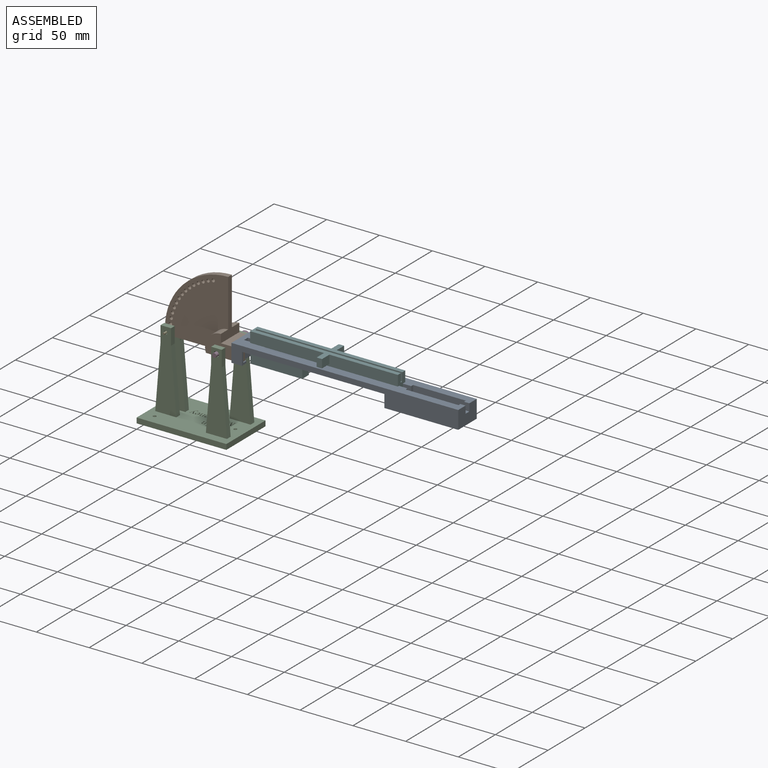
[diagram: assembled view]
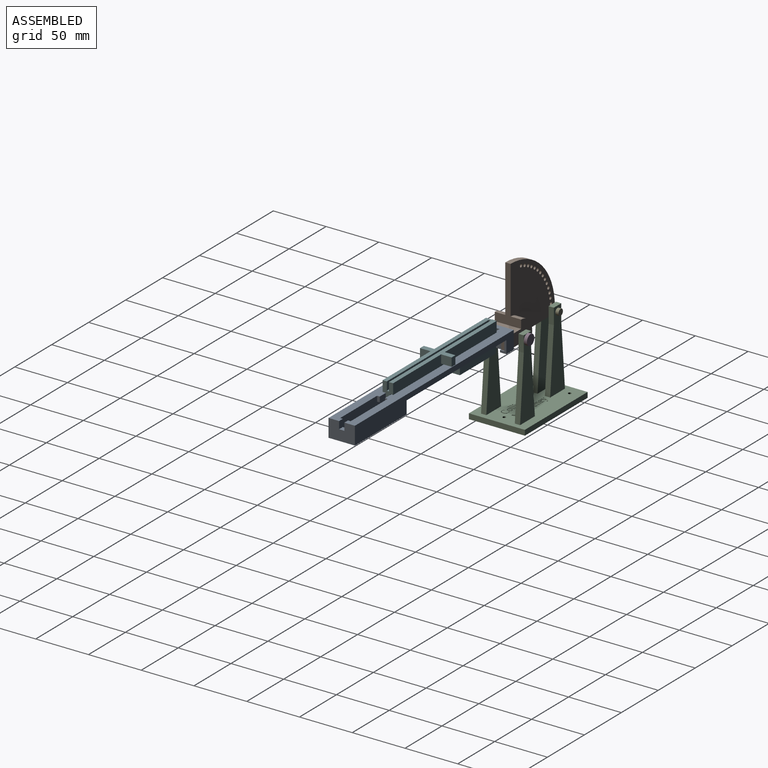
[diagram: assembled view, second angle]
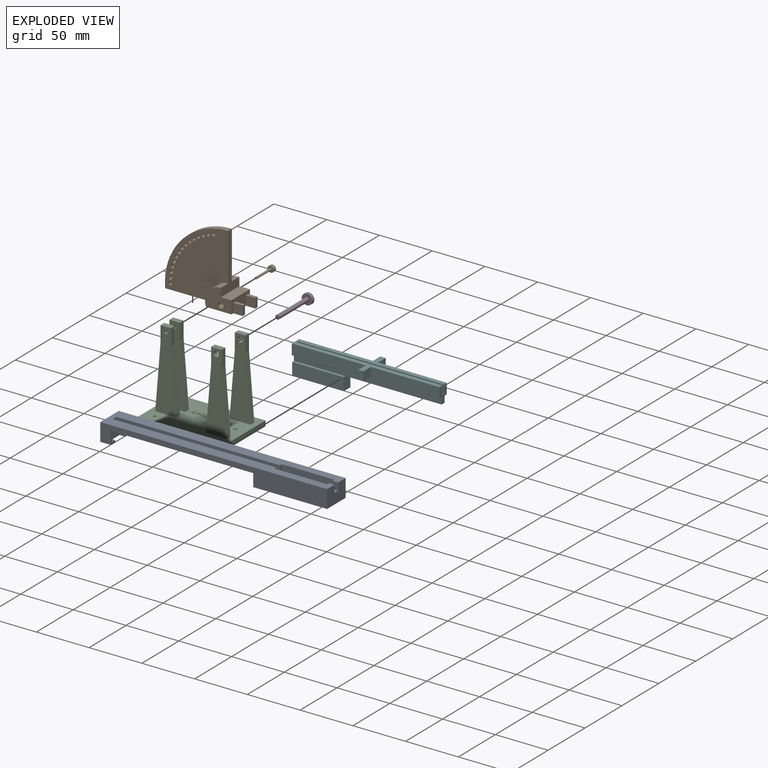
[diagram: exploded view]
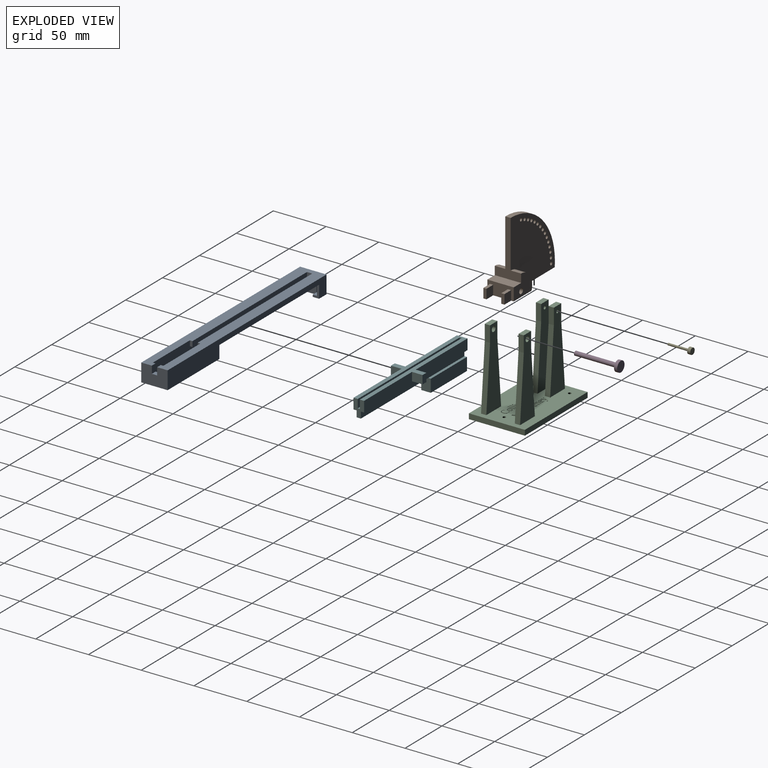
[diagram: exploded view, second angle]
ASSEMBLY  parts=6 mates=7
PART A: 34 faces, bbox 215x25x17 mm
  f0: plane 210x10mm, normal (0,0,1), area 1610mm2, adj f1,f2,f5,f6,f7,f13,f16,f17
  f1: plane 25x17mm, normal (-1,0,0), area 345mm2, adj f0,f4,f12,f13,f18,f21,f22,f23
  f2: plane 12x6mm, normal (1,0,0), area 32mm2, adj f0,f13,f19,f21,f26,f27
  f3: plane 12x6mm, normal (1,0,0), area 32mm2, adj f4,f12,f20,f21,f23,f24
  f4: plane 210x10mm, normal (0,0,1), area 1610mm2, adj f1,f3,f7,f8,f9,f10,f12,f16
  f5: plane 5x2.5mm, normal (1,0,0), area 12.5mm2, adj f0,f6,f17,f18
  f6: plane 155x5mm, normal (0,1,0), area 775mm2, adj f0,f5,f7,f18
  f7: plane 17x13mm, normal (1,0,0), area 181mm2, adj f0,f4,f6,f8,f18,f19,f20,f21
  f8: plane 155x5mm, normal (0,-1,0), area 775mm2, adj f4,f7,f9,f18
  f9: plane 5x2.5mm, normal (1,0,0), area 12.5mm2, adj f4,f8,f10,f18
  f10: plane 50x5mm, normal (0,-1,0), area 250mm2, adj f4,f9,f16,f18
  f11: plane 7x5mm, normal (0,-1,0), area 35mm2, adj f14,f16,f18,f33
  f12: plane 215x17mm, normal (0,1,0), area 2035mm2, adj f1,f3,f4,f14,f18,f21,f28,f32
  f13: plane 215x17mm, normal (0,-1,0), area 2035mm2, adj f0,f1,f2,f14,f18,f21,f31,f32
  f14: plane 25x17mm, normal (1,0,0), area 390mm2, adj f11,f12,f13,f15,f18,f32,f33
  f15: plane 7x5mm, normal (0,1,0), area 35mm2, adj f14,f16,f18,f33
  f16: plane 17x15mm, normal (-1,0,0), area 195mm2, adj f0,f4,f10,f11,f15,f17,f18,f29
  f17: plane 50x5mm, normal (0,1,0), area 250mm2, adj f0,f5,f16,f18
  f18: plane 215x25mm, normal (0,0,-1), area 4075mm2, adj f1,f5,f6,f7,f8,f9,f10,f11
  f19: plane 5x2mm, normal (0,1,0), area 10mm2, adj f2,f7,f21,f26
  f20: plane 5x2mm, normal (0,-1,0), area 10mm2, adj f3,f7,f21,f23
  f21: plane 25x10mm, normal (0,0,1), area 185mm2, adj f1,f2,f3,f7,f12,f13,f19,f20
  f22: plane 10x5mm, normal (0,1,0), area 50mm2, adj f1,f4,f7,f23
  f23: plane 10x4mm, normal (0,0,-1), area 40mm2, adj f1,f3,f20,f22,f24
  f24: plane 10x10mm, normal (0,-1,0), area 100mm2, adj f1,f3,f4,f23
  f25: plane 10x5mm, normal (0,-1,0), area 50mm2, adj f0,f1,f7,f26
  f26: plane 10x4mm, normal (0,0,-1), area 40mm2, adj f1,f2,f19,f25,f27
  f27: plane 10x10mm, normal (0,1,0), area 100mm2, adj f0,f1,f2,f26
  f28: plane 12x5mm, normal (-1,0,0), area 60mm2, adj f4,f12,f29,f32
  f29: plane 65x12mm, normal (0,-1,0), area 780mm2, adj f4,f16,f28,f32
  f30: plane 65x12mm, normal (0,1,0), area 780mm2, adj f0,f16,f31,f32
  f31: plane 12x5mm, normal (-1,0,0), area 60mm2, adj f0,f13,f30,f32
  f32: plane 70x25mm, normal (0,0,1), area 775mm2, adj f12,f13,f14,f16,f28,f29,f30,f31
  f33: plane 5x5mm, normal (0,0,-1), area 25mm2, adj f11,f14,f15,f16
PART B: 35 faces, bbox 79x25x65 mm
  f0: plane 25x12mm, normal (-1,0,0), area 246mm2, adj f18,f19,f20,f22,f27,f28,f29,f31
  f1: plane 53x25mm, normal (-1,0,0), area 425mm2, adj f17,f18,f19,f22,f23,f24,f25,f26
  f2: cylinder r=1.5mm len=5mm, axis (0,1,0), area 47.1mm2, adj f24,f26
  f3: cylinder r=1.5mm len=5mm, axis (0,1,0), area 47.1mm2, adj f24,f26
  f4: cylinder r=1.5mm len=5mm, axis (0,1,0), area 47.1mm2, adj f24,f26
  f5: cylinder r=1.5mm len=5mm, axis (0,1,0), area 47.1mm2, adj f24,f26
  f6: cylinder r=1.5mm len=5mm, axis (0,1,0), area 47.1mm2, adj f24,f26
  f7: cylinder r=1.5mm len=5mm, axis (0,1,0), area 47.1mm2, adj f24,f26
  f8: cylinder r=1.5mm len=5mm, axis (0,1,0), area 47.1mm2, adj f24,f26
  f9: cylinder r=1.5mm len=5mm, axis (0,1,0), area 47.1mm2, adj f24,f26
  f10: cylinder r=1.5mm len=5mm, axis (0,1,0), area 47.1mm2, adj f24,f26
  f11: cylinder r=1.5mm len=5mm, axis (0,1,0), area 47.1mm2, adj f24,f26
  f12: cylinder r=1.5mm len=5mm, axis (0,1,0), area 47.1mm2, adj f24,f26
  f13: cylinder r=1.5mm len=5mm, axis (0,1,0), area 47.1mm2, adj f24,f26
  f14: cylinder r=1.5mm len=5mm, axis (0,1,0), area 47.1mm2, adj f24,f26
  f15: cylinder r=1.5mm len=5mm, axis (0,1,0), area 47.1mm2, adj f24,f26
  f16: cylinder r=1.5mm len=5mm, axis (0,1,0), area 47.1mm2, adj f24,f26
  f17: cylinder r=60mm len=65mm, axis (0,1,0), area 496.3mm2, adj f1,f20,f24,f26
  f18: plane 25x20mm, normal (0,-1,0), area 350.7mm2, adj f0,f1,f19,f20,f21,f23
  f19: plane 25x10mm, normal (0,0,1), area 250mm2, adj f0,f1,f18,f22
  f20: plane 78.79x25mm, normal (0,0,-1), area 885.8mm2, adj f0,f17,f18,f22,f23,f24,f25,f26
  f21: cylinder r=2.5mm len=25mm, axis (0,1,0), area 392.7mm2, adj f18,f22
  f22: plane 25x20mm, normal (0,1,0), area 350.7mm2, adj f0,f1,f19,f20,f21,f25
  f23: cylinder r=15mm len=20mm, axis (0,-1,0), area 286.6mm2, adj f1,f18,f20,f24
  f24: plane 65x60mm, normal (0,-1,0), area 2770.8mm2, adj f1,f2,f3,f4,f5,f6,f7,f8
  f25: cylinder r=15mm len=20mm, axis (0,1,0), area 286.6mm2, adj f1,f20,f22,f26
  f26: plane 65x60mm, normal (0,1,0), area 2770.8mm2, adj f1,f2,f3,f4,f5,f6,f7,f8
  f27: plane 9x3mm, normal (0,0,1), area 27mm2, adj f0,f28,f29,f30
  f28: plane 9x9mm, normal (0,1,0), area 81mm2, adj f0,f20,f27,f30
  f29: plane 9x9mm, normal (0,-1,0), area 81mm2, adj f0,f20,f27,f30
  f30: plane 9x3mm, normal (-1,0,0), area 27mm2, adj f20,f27,f28,f29
  f31: plane 9x9mm, normal (0,-1,0), area 81mm2, adj f0,f20,f32,f34
  f32: plane 9x3mm, normal (0,0,1), area 27mm2, adj f0,f31,f33,f34
  f33: plane 9x9mm, normal (0,1,0), area 81mm2, adj f0,f20,f32,f34
  f34: plane 9x3mm, normal (-1,0,0), area 27mm2, adj f20,f31,f32,f33
PART C: 324 faces, bbox 85x53x80 mm
  f0: plane 85x53mm, normal (0,0,1), area 3956.6mm2, adj f5,f6,f7,f8,f10,f11,f13,f15
  f1: plane 15x5mm, normal (-1,0,0), area 75mm2, adj f10,f11,f12,f37
  f2: plane 15x5mm, normal (1,0,0), area 75mm2, adj f10,f11,f12,f36
  f3: plane 15x5mm, normal (-1,0,0), area 75mm2, adj f18,f19,f20,f35
  f4: plane 15x5mm, normal (1,0,0), area 75mm2, adj f18,f19,f20,f34
  f5: plane 85x5mm, normal (0,-1,0), area 425mm2, adj f0,f6,f8,f9
  f6: plane 53x5mm, normal (1,0,0), area 265mm2, adj f0,f5,f7,f9
  f7: plane 85x5mm, normal (0,1,0), area 425mm2, adj f0,f6,f8,f9
  f8: plane 53x5mm, normal (-1,0,0), area 265mm2, adj f0,f5,f7,f9
  f9: plane 85x53mm, normal (0,0,-1), area 4483.8mm2, adj f5,f6,f7,f8,f38,f39,f40
  f10: plane 75x20mm, normal (0,1,0), area 1030.4mm2, adj f0,f1,f2,f12,f29,f36,f37
  f11: plane 75x20mm, normal (0,-1,0), area 1030.4mm2, adj f0,f1,f2,f12,f29,f36,f37
  f12: plane 10x5mm, normal (0,0,1), area 50mm2, adj f1,f2,f10,f11
  f13: plane 75x20mm, normal (0,1,0), area 1030.4mm2, adj f0,f14,f16,f17,f28,f30,f31
  f14: plane 15x5mm, normal (-1,0,0), area 75mm2, adj f13,f15,f17,f30
  f15: plane 75x20mm, normal (0,-1,0), area 1030.4mm2, adj f0,f14,f16,f17,f28,f30,f31
  f16: plane 15x5mm, normal (1,0,0), area 75mm2, adj f13,f15,f17,f31
  f17: plane 10x5mm, normal (0,0,1), area 50mm2, adj f13,f14,f15,f16
  f18: plane 75x20mm, normal (0,1,0), area 1042.9mm2, adj f0,f3,f4,f20,f27,f34,f35
  f19: plane 75x20mm, normal (0,-1,0), area 1042.9mm2, adj f0,f3,f4,f20,f27,f34,f35
  f20: plane 10x5mm, normal (0,0,1), area 50mm2, adj f3,f4,f18,f19
  f21: plane 75x20mm, normal (0,1,0), area 1042.9mm2, adj f0,f22,f24,f25,f26,f32,f33
  f22: plane 15x5mm, normal (-1,0,0), area 75mm2, adj f21,f23,f25,f32
  f23: plane 75x20mm, normal (0,-1,0), area 1042.9mm2, adj f0,f22,f24,f25,f26,f32,f33
  f24: plane 15x5mm, normal (1,0,0), area 75mm2, adj f21,f23,f25,f33
  f25: plane 10x5mm, normal (0,0,1), area 50mm2, adj f21,f22,f23,f24
  f26: cylinder r=1.5mm len=5mm, axis (0,-1,0), area 47.1mm2, adj f21,f23
  f27: cylinder r=1.5mm len=5mm, axis (0,-1,0), area 47.1mm2, adj f18,f19
  f28: cylinder r=2.5mm len=5mm, axis (0,-1,0), area 78.5mm2, adj f13,f15
  f29: cylinder r=2.5mm len=5mm, axis (0,-1,0), area 78.5mm2, adj f10,f11
  f30: plane 60x5mm, normal (-1,0,0.08), area 301mm2, adj f0,f13,f14,f15
  f31: plane 60x5mm, normal (1,0,0.08), area 301mm2, adj f0,f13,f15,f16
  f32: plane 60x5mm, normal (-1,0,0.08), area 301mm2, adj f0,f21,f22,f23
  f33: plane 60x5mm, normal (1,0,0.08), area 301mm2, adj f0,f21,f23,f24
  f34: plane 60x5mm, normal (1,0,0.08), area 301mm2, adj f0,f4,f18,f19
  f35: plane 60x5mm, normal (-1,0,0.08), area 301mm2, adj f0,f3,f18,f19
  f36: plane 60x5mm, normal (1,0,0.08), area 301mm2, adj f0,f2,f10,f11
  f37: plane 60x5mm, normal (-1,0,0.08), area 301mm2, adj f0,f1,f10,f11
  f38: cylinder r=1.5mm len=5mm, axis (0,0,1), area 47.1mm2, adj f0,f9
  f39: cylinder r=1.5mm len=5mm, axis (0,0,1), area 47.1mm2, adj f0,f9
  f40: cylinder r=1.5mm len=5mm, axis (0,0,1), area 47.1mm2, adj f0,f9
  f41: extruded ~2.36x2mm, area 5.1mm2, adj f0,f42,f60,f61
  f42: extruded ~2.2x2mm, area 4.5mm2, adj f0,f41,f43,f61
  f43: plane 2x1.47mm, normal (-1,0.02,0), area 2.9mm2, adj f0,f42,f44,f61
  f44: plane 2x0.3mm, normal (0,-1,0), area 0.6mm2, adj f0,f43,f45,f61
  f45: plane 2x0.93mm, normal (0.98,-0.18,0), area 1.9mm2, adj f0,f44,f46,f61
  f46: extruded ~2x0.74mm, area 1.6mm2, adj f0,f45,f47,f61
  f47: extruded ~2x1mm, area 2mm2, adj f0,f46,f48,f61
  f48: extruded ~2x1.67mm, area 3.8mm2, adj f0,f47,f49,f61
  f49: extruded ~2.07x2mm, area 4.4mm2, adj f0,f48,f50,f61
  f50: extruded ~2.18x2mm, area 4.6mm2, adj f0,f49,f51,f61
  f51: extruded ~2x1.74mm, area 3.9mm2, adj f0,f50,f52,f61
  f52: extruded ~2x0.88mm, area 1.8mm2, adj f0,f51,f53,f61
  f53: extruded ~2x0.76mm, area 1.6mm2, adj f0,f52,f54,f61
  f54: plane 2x0.81mm, normal (0.99,0.17,0), area 1.6mm2, adj f0,f53,f55,f61
  f55: plane 2x0.31mm, normal (0,1,0), area 0.6mm2, adj f0,f54,f56,f61
  f56: plane 2x1.36mm, normal (-1,-0.02,0), area 2.7mm2, adj f0,f55,f57,f61
  f57: extruded ~2.09x2mm, area 4.2mm2, adj f0,f56,f58,f61
  f58: extruded ~2.41x2mm, area 5.2mm2, adj f0,f57,f59,f61
  f59: extruded ~2.43x2mm, area 5.3mm2, adj f0,f58,f60,f61
  f60: extruded ~2.31x2mm, area 5.1mm2, adj f0,f41,f59,f61
  f61: plane 6.4x5.44mm, normal (0,0,1), area 9.1mm2, adj f41,f42,f43,f44,f45,f46,f47,f48
  f62: extruded ~2x0.76mm, area 1.7mm2, adj f0,f63,f86,f87
  f63: plane 2x0.35mm, normal (-0.99,-0.12,0), area 0.7mm2, adj f0,f62,f64,f87
  f64: plane 2x1.25mm, normal (0,-1,0), area 2.5mm2, adj f0,f63,f65,f87
  f65: plane 2x0.21mm, normal (1,0,0), area 0.4mm2, adj f0,f64,f66,f87
  f66: plane 2x0.53mm, normal (0.22,0.98,0), area 1.1mm2, adj f0,f65,f67,f87
  f67: plane 3.72x2mm, normal (1,0,0), area 7.4mm2, adj f0,f66,f68,f87
  f68: plane 2x0.53mm, normal (0.22,-0.98,0), area 1.1mm2, adj f0,f67,f69,f87
  f69: plane 2x0.21mm, normal (1,0,0), area 0.4mm2, adj f0,f68,f70,f87
  f70: plane 2x1.89mm, normal (0,1,0), area 3.8mm2, adj f0,f69,f71,f87
  f71: plane 2x0.21mm, normal (-1,0,0), area 0.4mm2, adj f0,f70,f72,f87
  f72: plane 2x0.59mm, normal (-0.19,-0.98,0), area 1.2mm2, adj f0,f71,f73,f87
  f73: plane 3.48x2mm, normal (-1,0,0), area 7mm2, adj f0,f72,f74,f87
  f74: extruded ~2x1.03mm, area 2.1mm2, adj f0,f73,f75,f87
  f75: extruded ~2x0.58mm, area 1.3mm2, adj f0,f74,f76,f87
  f76: extruded ~2x0.61mm, area 1.3mm2, adj f0,f75,f77,f87
  f77: plane 2.79x2mm, normal (1,0,0), area 5.6mm2, adj f0,f76,f78,f87
  f78: plane 2x0.58mm, normal (0.2,-0.98,0), area 1.2mm2, adj f0,f77,f79,f87
  f79: plane 2x0.21mm, normal (1,0,0), area 0.4mm2, adj f0,f78,f80,f87
  f80: plane 2x1.88mm, normal (0,1,0), area 3.8mm2, adj f0,f79,f81,f87
  f81: plane 2x0.21mm, normal (-1,0,0), area 0.4mm2, adj f0,f80,f82,f87
  f82: plane 2x0.53mm, normal (-0.21,-0.98,0), area 1.1mm2, adj f0,f81,f83,f87
  f83: plane 2.87x2mm, normal (-1,0,0), area 5.7mm2, adj f0,f82,f84,f87
  f84: extruded ~2x0.96mm, area 2mm2, adj f0,f83,f85,f87
  f85: extruded ~2x0.86mm, area 1.9mm2, adj f0,f84,f86,f87
  f86: extruded ~2x0.67mm, area 1.4mm2, adj f0,f62,f85,f87
  f87: plane 4.49x4.4mm, normal (0,0,1), area 8.2mm2, adj f62,f63,f64,f65,f66,f67,f68,f69
  f88: extruded ~2x0.72mm, area 1.4mm2, adj f0,f89,f112,f113
  f89: extruded ~2x0.62mm, area 1.3mm2, adj f0,f88,f90,f113
  f90: extruded ~2x0.51mm, area 1.4mm2, adj f0,f89,f91,f113
  f91: extruded ~2x1.1mm, area 2.4mm2, adj f0,f90,f92,f113
  f92: plane 4.34x2mm, normal (-0.93,0.37,0), area 9.3mm2, adj f0,f91,f93,f113
  f93: plane 2x0.46mm, normal (-0.21,0.98,0), area 0.9mm2, adj f0,f92,f94,f113
  f94: plane 2x0.21mm, normal (-1,0,0), area 0.4mm2, adj f0,f93,f95,f113
  f95: plane 2x1.63mm, normal (0,-1,0), area 3.3mm2, adj f0,f94,f96,f113
  f96: plane 2x0.21mm, normal (1,0,0), area 0.4mm2, adj f0,f95,f97,f113
  f97: plane 2x0.68mm, normal (0.17,0.99,0), area 1.4mm2, adj f0,f96,f98,f113
  f98: plane 3.07x2mm, normal (0.94,-0.35,0), area 6.5mm2, adj f0,f97,f99,f113
  f99: plane 3.06x2mm, normal (-0.93,-0.36,0), area 6.6mm2, adj f0,f98,f100,f113
  f100: plane 2x0.69mm, normal (-0.18,0.98,0), area 1.4mm2, adj f0,f99,f101,f113
  f101: plane 2x0.21mm, normal (-1,0,0), area 0.4mm2, adj f0,f100,f102,f113
  f102: plane 2.03x2mm, normal (0,-1,0), area 4.1mm2, adj f0,f101,f103,f113
  f103: plane 2x0.21mm, normal (1,0,0), area 0.4mm2, adj f0,f102,f104,f113
  f104: plane 2x0.45mm, normal (0.25,0.97,0), area 0.9mm2, adj f0,f103,f105,f113
  f105: plane 4.09x2mm, normal (0.93,0.38,0), area 8.8mm2, adj f0,f104,f106,f113
  f106: extruded ~2x0.98mm, area 2.1mm2, adj f0,f105,f107,f113
  f107: extruded ~2x0.41mm, area 1.1mm2, adj f0,f106,f108,f113
  f108: extruded ~2x0.45mm, area 1mm2, adj f0,f107,f109,f113
  f109: extruded ~2x0.4mm, area 0.8mm2, adj f0,f108,f110,f113
  f110: plane 2x0.45mm, normal (-0.95,-0.32,0), area 0.9mm2, adj f0,f109,f111,f113
  f111: plane 2x0.22mm, normal (0,-1,0), area 0.4mm2, adj f0,f110,f112,f113
  f112: plane 2x0.94mm, normal (1,0,0), area 1.9mm2, adj f0,f88,f111,f113
  f113: plane 6.43x4.61mm, normal (0,0,1), area 7.4mm2, adj f88,f89,f90,f91,f92,f93,f94,f95
  f114: extruded ~2x1.46mm, area 3mm2, adj f115,f128,f129,f320
  f115: extruded ~2x1.48mm, area 3.1mm2, adj f114,f116,f129,f320
  f116: extruded ~2x0.91mm, area 2.1mm2, adj f115,f117,f129,f320
  f117: extruded ~2x0.88mm, area 2.1mm2, adj f116,f118,f129,f320
  f118: extruded ~2x1.49mm, area 3.1mm2, adj f117,f119,f129,f320
  f119: extruded ~2x1.47mm, area 3mm2, adj f118,f120,f129,f320
  f120: extruded ~2x0.88mm, area 2.1mm2, adj f119,f128,f129,f320
  f121: extruded ~2.3x2.05mm, area 7.1mm2, adj f0,f122,f127,f129
  f122: extruded ~2x1.71mm, area 3.6mm2, adj f0,f121,f123,f129
  f123: extruded ~2x1.5mm, area 3.3mm2, adj f0,f122,f124,f129
  f124: extruded ~2x1.52mm, area 3.4mm2, adj f0,f123,f125,f129
  f125: extruded ~2x1.69mm, area 3.6mm2, adj f0,f124,f126,f129
  f126: extruded ~2x1.71mm, area 3.6mm2, adj f0,f125,f127,f129
  f127: extruded ~2x1.49mm, area 3.3mm2, adj f0,f121,f126,f129
  f128: extruded ~2x0.92mm, area 2.1mm2, adj f114,f120,f129,f320
  f129: plane 4.58x4.04mm, normal (0,0,1), area 7.7mm2, adj f114,f115,f116,f117,f118,f119,f120,f121
  f130: plane 3.03x2mm, normal (-0.94,0.33,0), area 6.4mm2, adj f131,f148,f149,f321
  f131: plane 3.03x2mm, normal (0.94,0.34,0), area 6.4mm2, adj f130,f148,f149,f321
  f132: plane 2x0.25mm, normal (-1,0,0), area 0.5mm2, adj f0,f133,f147,f149
  f133: plane 2x0.84mm, normal (-0.15,-0.99,0), area 1.7mm2, adj f0,f132,f134,f149
  f134: plane 2x1.8mm, normal (-0.94,0.33,0), area 3.8mm2, adj f0,f133,f135,f149
  f135: plane 2.46x2mm, normal (0,1,0), area 4.9mm2, adj f0,f134,f136,f149
  f136: plane 2x1.8mm, normal (0.95,0.33,0), area 3.8mm2, adj f0,f135,f137,f149
  f137: plane 2x0.84mm, normal (0.15,-0.99,0), area 1.7mm2, adj f0,f136,f138,f149
  f138: plane 2x0.25mm, normal (1,0,0), area 0.5mm2, adj f0,f137,f139,f149
  f139: plane 2.64x2mm, normal (0,1,0), area 5.3mm2, adj f0,f138,f140,f149
  f140: plane 2x0.25mm, normal (-1,0,0), area 0.5mm2, adj f0,f139,f141,f149
  f141: plane 2x0.79mm, normal (-0.16,-0.99,0), area 1.6mm2, adj f0,f140,f142,f149
  f142: plane 5.92x2.21mm, normal (-0.94,-0.35,0), area 12.6mm2, adj f0,f141,f143,f149
  f143: plane 2x0.88mm, normal (0,-1,0), area 1.8mm2, adj f0,f142,f144,f149
  f144: plane 5.92x2.13mm, normal (0.94,-0.34,0), area 12.6mm2, adj f0,f143,f145,f149
  f145: plane 2x0.71mm, normal (0.17,-0.98,0), area 1.4mm2, adj f0,f144,f146,f149
  f146: plane 2x0.25mm, normal (1,0,0), area 0.5mm2, adj f0,f145,f147,f149
  f147: plane 2.05x2mm, normal (0,1,0), area 4.1mm2, adj f0,f132,f146,f149
  f148: plane 2.17x2mm, normal (0,-1,0), area 4.3mm2, adj f130,f131,f149,f321
  f149: plane 6.71x6.29mm, normal (0,0,1), area 10.8mm2, adj f130,f131,f132,f133,f134,f135,f136,f137
  f150: extruded ~2x0.74mm, area 1.8mm2, adj f151,f170,f171,f322
  f151: extruded ~2x0.66mm, area 1.6mm2, adj f150,f152,f171,f322
  f152: extruded ~2x1.19mm, area 2.4mm2, adj f151,f153,f171,f322
  f153: plane 2x1.87mm, normal (0,-1,0), area 3.7mm2, adj f152,f170,f171,f322
  f154: plane 2x0.08mm, normal (-1,0,0), area 0.2mm2, adj f0,f155,f169,f171
  f155: plane 2.69x2mm, normal (0,1,0), area 5.4mm2, adj f0,f154,f156,f171
  f156: plane 2x0.38mm, normal (-1,0,0), area 0.8mm2, adj f0,f155,f157,f171
  f157: extruded ~2x1.91mm, area 5.8mm2, adj f0,f156,f158,f171
  f158: extruded ~2x1.37mm, area 3.1mm2, adj f0,f157,f159,f171
  f159: extruded ~2x1.71mm, area 3.6mm2, adj f0,f158,f160,f171
  f160: extruded ~2x1.76mm, area 3.7mm2, adj f0,f159,f161,f171
  f161: extruded ~2x1.49mm, area 3.3mm2, adj f0,f160,f162,f171
  f162: extruded ~2x0.78mm, area 1.6mm2, adj f0,f161,f163,f171
  f163: extruded ~2x0.61mm, area 1.3mm2, adj f0,f162,f164,f171
  f164: plane 2x0.26mm, normal (-1,0,0), area 0.5mm2, adj f0,f163,f165,f171
  f165: extruded ~2x0.57mm, area 1.1mm2, adj f0,f164,f166,f171
  f166: extruded ~2x0.6mm, area 1.2mm2, adj f0,f165,f167,f171
  f167: extruded ~2x0.77mm, area 1.6mm2, adj f0,f166,f168,f171
  f168: extruded ~2x0.54mm, area 1.4mm2, adj f0,f167,f169,f171
  f169: extruded ~2x1mm, area 2mm2, adj f0,f154,f168,f171
  f170: extruded ~2x1.15mm, area 2.4mm2, adj f150,f153,f171,f322
  f171: plane 4.58x3.53mm, normal (0,0,1), area 7.1mm2, adj f150,f151,f152,f153,f154,f155,f156,f157
  f172: extruded ~2x0.74mm, area 1.8mm2, adj f173,f192,f193,f323
  f173: extruded ~2x0.66mm, area 1.6mm2, adj f172,f174,f193,f323
  f174: extruded ~2x1.19mm, area 2.4mm2, adj f173,f175,f193,f323
  f175: plane 2x1.87mm, normal (0,-1,0), area 3.7mm2, adj f174,f192,f193,f323
  f176: plane 2x0.08mm, normal (-1,0,0), area 0.2mm2, adj f0,f177,f191,f193
  f177: plane 2.69x2mm, normal (0,1,0), area 5.4mm2, adj f0,f176,f178,f193
  f178: plane 2x0.38mm, normal (-1,0,0), area 0.8mm2, adj f0,f177,f179,f193
  f179: extruded ~2x1.91mm, area 5.8mm2, adj f0,f178,f180,f193
  f180: extruded ~2x1.37mm, area 3.1mm2, adj f0,f179,f181,f193
  f181: extruded ~2x1.71mm, area 3.6mm2, adj f0,f180,f182,f193
  f182: extruded ~2x1.76mm, area 3.7mm2, adj f0,f181,f183,f193
  f183: extruded ~2x1.49mm, area 3.3mm2, adj f0,f182,f184,f193
  f184: extruded ~2x0.78mm, area 1.6mm2, adj f0,f183,f185,f193
  f185: extruded ~2x0.61mm, area 1.3mm2, adj f0,f184,f186,f193
  f186: plane 2x0.26mm, normal (-1,0,0), area 0.5mm2, adj f0,f185,f187,f193
  f187: extruded ~2x0.57mm, area 1.1mm2, adj f0,f186,f188,f193
  f188: extruded ~2x0.6mm, area 1.2mm2, adj f0,f187,f189,f193
  f189: extruded ~2x0.77mm, area 1.6mm2, adj f0,f188,f190,f193
  f190: extruded ~2x0.54mm, area 1.4mm2, adj f0,f189,f191,f193
  f191: extruded ~2x1mm, area 2mm2, adj f0,f176,f190,f193
  f192: extruded ~2x1.15mm, area 2.4mm2, adj f172,f175,f193,f323
  f193: plane 4.58x3.53mm, normal (0,0,1), area 7.1mm2, adj f172,f173,f174,f175,f176,f177,f178,f179
  f194: plane 2x0.75mm, normal (-0.15,-0.99,0), area 1.5mm2, adj f0,f195,f203,f204
  f195: plane 6.28x2mm, normal (-1,0,0), area 12.6mm2, adj f0,f194,f196,f204
  f196: plane 2x1.52mm, normal (0,-1,0), area 3mm2, adj f0,f195,f197,f204
  f197: plane 2x0.21mm, normal (1,0,0), area 0.4mm2, adj f0,f196,f198,f204
  f198: plane 2x0.74mm, normal (0.15,0.99,0), area 1.5mm2, adj f0,f197,f199,f204
  f199: plane 5.96x2mm, normal (1,0,0), area 11.9mm2, adj f0,f198,f200,f204
  f200: plane 2x0.74mm, normal (0.15,-0.99,0), area 1.5mm2, adj f0,f199,f201,f204
  f201: plane 2x0.21mm, normal (1,0,0), area 0.4mm2, adj f0,f200,f202,f204
  f202: plane 2.27x2mm, normal (0,1,0), area 4.5mm2, adj f0,f201,f203,f204
  f203: plane 2x0.21mm, normal (-1,0,0), area 0.4mm2, adj f0,f194,f202,f204
  f204: plane 6.61x2.27mm, normal (0,0,1), area 5.7mm2, adj f194,f195,f196,f197,f198,f199,f200,f201
  f205: plane 2x0.75mm, normal (-0.15,-0.99,0), area 1.5mm2, adj f0,f206,f214,f215
  f206: plane 6.28x2mm, normal (-1,0,0), area 12.6mm2, adj f0,f205,f207,f215
  f207: plane 2x1.52mm, normal (0,-1,0), area 3mm2, adj f0,f206,f208,f215
  f208: plane 2x0.21mm, normal (1,0,0), area 0.4mm2, adj f0,f207,f209,f215
  f209: plane 2x0.74mm, normal (0.15,0.99,0), area 1.5mm2, adj f0,f208,f210,f215
  f210: plane 5.96x2mm, normal (1,0,0), area 11.9mm2, adj f0,f209,f211,f215
  f211: plane 2x0.74mm, normal (0.15,-0.99,0), area 1.5mm2, adj f0,f210,f212,f215
  f212: plane 2x0.21mm, normal (1,0,0), area 0.4mm2, adj f0,f211,f213,f215
  f213: plane 2.27x2mm, normal (0,1,0), area 4.5mm2, adj f0,f212,f214,f215
  f214: plane 2x0.21mm, normal (-1,0,0), area 0.4mm2, adj f0,f205,f213,f215
  f215: plane 6.61x2.27mm, normal (0,0,1), area 5.7mm2, adj f205,f206,f207,f208,f209,f210,f211,f212
  f216: extruded ~2x0.35mm, area 0.8mm2, adj f0,f217,f223,f224
  f217: extruded ~2x0.36mm, area 0.8mm2, adj f0,f216,f218,f224
  f218: extruded ~2x0.36mm, area 0.8mm2, adj f0,f217,f219,f224
  f219: extruded ~2x0.35mm, area 0.8mm2, adj f0,f218,f220,f224
  f220: extruded ~2x0.36mm, area 0.8mm2, adj f0,f219,f221,f224
  f221: extruded ~2x0.35mm, area 0.8mm2, adj f0,f220,f222,f224
  f222: extruded ~2x0.35mm, area 0.8mm2, adj f0,f221,f223,f224
  f223: extruded ~2x0.36mm, area 0.8mm2, adj f0,f216,f222,f224
  f224: plane 1.01x1.01mm, normal (0,0,1), area 0.8mm2, adj f216,f217,f218,f219,f220,f221,f222,f223
  f225: plane 2x0.75mm, normal (-0.15,-0.99,0), area 1.5mm2, adj f0,f226,f234,f235
  f226: plane 4.05x2mm, normal (-1,0,0), area 8.1mm2, adj f0,f225,f227,f235
  f227: plane 2x1.39mm, normal (0,-1,0), area 2.8mm2, adj f0,f226,f228,f235
  f228: plane 2x0.21mm, normal (1,0,0), area 0.4mm2, adj f0,f227,f229,f235
  f229: plane 2x0.62mm, normal (0.18,0.98,0), area 1.3mm2, adj f0,f228,f230,f235
  f230: plane 3.72x2mm, normal (1,0,0), area 7.4mm2, adj f0,f229,f231,f235
  f231: plane 2x0.74mm, normal (0.15,-0.99,0), area 1.5mm2, adj f0,f230,f232,f235
  f232: plane 2x0.21mm, normal (1,0,0), area 0.4mm2, adj f0,f231,f233,f235
  f233: plane 2.27x2mm, normal (0,1,0), area 4.5mm2, adj f0,f232,f234,f235
  f234: plane 2x0.21mm, normal (-1,0,0), area 0.4mm2, adj f0,f225,f233,f235
  f235: plane 4.37x2.27mm, normal (0,0,1), area 3.9mm2, adj f225,f226,f227,f228,f229,f230,f231,f232
  f236: plane 2x0.35mm, normal (0,1,0), area 0.7mm2, adj f0,f237,f250,f251
  f237: plane 4.16x2mm, normal (-0.92,0.39,0), area 9mm2, adj f0,f236,f238,f251
  f238: plane 2x0.42mm, normal (-0.23,0.97,0), area 0.9mm2, adj f0,f237,f239,f251
  f239: plane 2x0.21mm, normal (-1,0,0), area 0.4mm2, adj f0,f238,f240,f251
  f240: plane 2x1.62mm, normal (0,-1,0), area 3.2mm2, adj f0,f239,f241,f251
  f241: plane 2x0.21mm, normal (1,0,0), area 0.4mm2, adj f0,f240,f242,f251
  f242: plane 2x0.69mm, normal (0.17,0.99,0), area 1.4mm2, adj f0,f241,f243,f251
  f243: plane 3.03x2mm, normal (0.93,-0.37,0), area 6.5mm2, adj f0,f242,f244,f251
  f244: plane 3.02x2mm, normal (-0.92,-0.39,0), area 6.6mm2, adj f0,f243,f245,f251
  f245: plane 2x0.69mm, normal (-0.18,0.98,0), area 1.4mm2, adj f0,f244,f246,f251
  f246: plane 2x0.21mm, normal (-1,0,0), area 0.4mm2, adj f0,f245,f247,f251
  f247: plane 2.04x2mm, normal (0,-1,0), area 4.1mm2, adj f0,f246,f248,f251
  f248: plane 2x0.21mm, normal (1,0,0), area 0.4mm2, adj f0,f247,f249,f251
  f249: plane 2x0.45mm, normal (0.25,0.97,0), area 0.9mm2, adj f0,f248,f250,f251
  f250: plane 4.14x2mm, normal (0.92,0.4,0), area 9mm2, adj f0,f236,f249,f251
  f251: plane 4.76x4.47mm, normal (0,0,1), area 6mm2, adj f236,f237,f238,f239,f240,f241,f242,f243
  f252: extruded ~2x0.63mm, area 1.4mm2, adj f0,f253,f266,f267
  f253: plane 2x0.28mm, normal (-1,0,0), area 0.6mm2, adj f0,f252,f254,f267
  f254: extruded ~2x1.18mm, area 2.4mm2, adj f0,f253,f255,f267
  f255: extruded ~2x1.17mm, area 2.6mm2, adj f0,f254,f256,f267
  f256: extruded ~2x1.41mm, area 3mm2, adj f0,f255,f257,f267
  f257: extruded ~2x1.9mm, area 5.1mm2, adj f0,f256,f258,f267
  f258: extruded ~2x0.93mm, area 1.9mm2, adj f0,f257,f259,f267
  f259: plane 2x0.77mm, normal (0.97,0.25,0), area 1.6mm2, adj f0,f258,f260,f267
  f260: plane 2x0.26mm, normal (0,1,0), area 0.5mm2, adj f0,f259,f261,f267
  f261: plane 2x1.22mm, normal (-1,0,0), area 2.4mm2, adj f0,f260,f262,f267
  f262: extruded ~2x1.37mm, area 2.8mm2, adj f0,f261,f263,f267
  f263: extruded ~2x1.55mm, area 3.4mm2, adj f0,f262,f264,f267
  f264: extruded ~2x1.68mm, area 3.6mm2, adj f0,f263,f265,f267
  f265: extruded ~2.31x2.13mm, area 7.2mm2, adj f0,f264,f266,f267
  f266: extruded ~2x0.82mm, area 1.7mm2, adj f0,f252,f265,f267
  f267: plane 4.58x3.57mm, normal (0,0,1), area 5.6mm2, adj f252,f253,f254,f255,f256,f257,f258,f259
  f268: plane 2x0.16mm, normal (0,1,0), area 0.3mm2, adj f0,f269,f292,f293
  f269: plane 5.36x2.49mm, normal (-0.91,0.42,0), area 11.8mm2, adj f0,f268,f270,f293
  f270: plane 4.99x2mm, normal (1,0,0), area 10mm2, adj f0,f269,f271,f293
  f271: plane 2x0.84mm, normal (0.15,-0.99,0), area 1.7mm2, adj f0,f270,f272,f293
  f272: plane 2x0.25mm, normal (1,0,0), area 0.5mm2, adj f0,f271,f273,f293
  f273: plane 2.53x2mm, normal (0,1,0), area 5.1mm2, adj f0,f272,f274,f293
  f274: plane 2x0.25mm, normal (-1,0,0), area 0.5mm2, adj f0,f273,f275,f293
  f275: plane 2x0.8mm, normal (-0.15,-0.99,0), area 1.6mm2, adj f0,f274,f276,f293
  f276: plane 5.5x2mm, normal (-1,0,0), area 11mm2, adj f0,f275,f277,f293
  f277: plane 2x0.8mm, normal (-0.15,0.99,0), area 1.6mm2, adj f0,f276,f278,f293
  f278: plane 2x0.25mm, normal (-1,0,0), area 0.5mm2, adj f0,f277,f279,f293
  f279: plane 2x1.79mm, normal (0,-1,0), area 3.6mm2, adj f0,f278,f280,f293
  f280: plane 4.74x2.21mm, normal (0.91,-0.42,0), area 10.5mm2, adj f0,f279,f281,f293
  f281: plane 4.74x2.03mm, normal (-0.92,-0.39,0), area 10.3mm2, adj f0,f280,f282,f293
  f282: plane 2x1.89mm, normal (0,-1,0), area 3.8mm2, adj f0,f281,f283,f293
  f283: plane 2x0.25mm, normal (1,0,0), area 0.5mm2, adj f0,f282,f284,f293
  f284: plane 2x0.8mm, normal (0.15,0.99,0), area 1.6mm2, adj f0,f283,f285,f293
  f285: plane 5.5x2mm, normal (1,0,0), area 11mm2, adj f0,f284,f286,f293
  f286: plane 2x0.8mm, normal (0.15,-0.99,0), area 1.6mm2, adj f0,f285,f287,f293
  f287: plane 2x0.25mm, normal (1,0,0), area 0.5mm2, adj f0,f286,f288,f293
  f288: plane 2.13x2mm, normal (0,1,0), area 4.3mm2, adj f0,f287,f289,f293
  f289: plane 2x0.25mm, normal (-1,0,0), area 0.5mm2, adj f0,f288,f290,f293
  f290: plane 2x0.84mm, normal (-0.15,-0.99,0), area 1.7mm2, adj f0,f289,f291,f293
  f291: plane 4.99x2mm, normal (-1,0,0), area 10mm2, adj f0,f290,f292,f293
  f292: plane 5.36x2.28mm, normal (0.92,0.39,0), area 11.7mm2, adj f0,f268,f291,f293
  f293: plane 7.92x6.24mm, normal (0,0,1), area 18mm2, adj f268,f269,f270,f271,f272,f273,f274,f275
  f294: extruded ~2x0.76mm, area 1.7mm2, adj f0,f295,f318,f319
  f295: plane 2x0.35mm, normal (-0.99,-0.12,0), area 0.7mm2, adj f0,f294,f296,f319
  f296: plane 2x1.25mm, normal (0,-1,0), area 2.5mm2, adj f0,f295,f297,f319
  f297: plane 2x0.21mm, normal (1,0,0), area 0.4mm2, adj f0,f296,f298,f319
  f298: plane 2x0.53mm, normal (0.22,0.98,0), area 1.1mm2, adj f0,f297,f299,f319
  f299: plane 3.72x2mm, normal (1,0,0), area 7.4mm2, adj f0,f298,f300,f319
  f300: plane 2x0.53mm, normal (0.22,-0.98,0), area 1.1mm2, adj f0,f299,f301,f319
  f301: plane 2x0.21mm, normal (1,0,0), area 0.4mm2, adj f0,f300,f302,f319
  f302: plane 2x1.89mm, normal (0,1,0), area 3.8mm2, adj f0,f301,f303,f319
  f303: plane 2x0.21mm, normal (-1,0,0), area 0.4mm2, adj f0,f302,f304,f319
  f304: plane 2x0.59mm, normal (-0.19,-0.98,0), area 1.2mm2, adj f0,f303,f305,f319
  f305: plane 3.48x2mm, normal (-1,0,0), area 7mm2, adj f0,f304,f306,f319
  f306: extruded ~2x1.03mm, area 2.1mm2, adj f0,f305,f307,f319
  f307: extruded ~2x0.58mm, area 1.3mm2, adj f0,f306,f308,f319
  f308: extruded ~2x0.61mm, area 1.3mm2, adj f0,f307,f309,f319
  f309: plane 2.79x2mm, normal (1,0,0), area 5.6mm2, adj f0,f308,f310,f319
  f310: plane 2x0.58mm, normal (0.2,-0.98,0), area 1.2mm2, adj f0,f309,f311,f319
  f311: plane 2x0.21mm, normal (1,0,0), area 0.4mm2, adj f0,f310,f312,f319
  f312: plane 2x1.88mm, normal (0,1,0), area 3.8mm2, adj f0,f311,f313,f319
  f313: plane 2x0.21mm, normal (-1,0,0), area 0.4mm2, adj f0,f312,f314,f319
  f314: plane 2x0.53mm, normal (-0.21,-0.98,0), area 1.1mm2, adj f0,f313,f315,f319
  f315: plane 2.87x2mm, normal (-1,0,0), area 5.7mm2, adj f0,f314,f316,f319
  f316: extruded ~2x0.96mm, area 2mm2, adj f0,f315,f317,f319
  f317: extruded ~2x0.86mm, area 1.9mm2, adj f0,f316,f318,f319
  f318: extruded ~2x0.67mm, area 1.4mm2, adj f0,f294,f317,f319
  f319: plane 4.49x4.4mm, normal (0,0,1), area 8.2mm2, adj f294,f295,f296,f297,f298,f299,f300,f301
  f320: plane 3.84x2.36mm, normal (0,0,1), area 7.7mm2, adj f114,f115,f116,f117,f118,f119,f120,f128
  f321: plane 3.03x2.17mm, normal (0,0,1), area 3.3mm2, adj f130,f131,f148
  f322: plane 1.87x1.54mm, normal (0,0,1), area 2.4mm2, adj f150,f151,f152,f153,f170
  f323: plane 1.87x1.54mm, normal (0,0,1), area 2.4mm2, adj f172,f173,f174,f175,f192
PART D: 5 faces, bbox 10x10x43 mm
  f0: cylinder r=5mm len=10mm, axis (0,0,-1), area 94.2mm2, adj f1,f2
  f1: plane 10x10mm, normal (0,0,1), area 66mm2, adj f0,f3
  f2: plane 10x10mm, normal (0,0,-1), area 78.5mm2, adj f0
  f3: cylinder r=2mm len=40mm, axis (0,0,-1), area 502.7mm2, adj f1,f4
  f4: plane 4x4mm, normal (0,0,1), area 12.6mm2, adj f3
PART E: 5 faces, bbox 6x6x23 mm
  f0: cylinder r=3mm len=6mm, axis (0,0,-1), area 56.5mm2, adj f1,f2
  f1: plane 6x6mm, normal (0,0,1), area 25.1mm2, adj f0,f3
  f2: plane 6x6mm, normal (0,0,-1), area 28.3mm2, adj f0
  f3: cylinder r=1mm len=20mm, axis (0,0,-1), area 125.7mm2, adj f1,f4
  f4: plane 2x2mm, normal (0,0,1), area 3.1mm2, adj f3
PART F: 28 faces, bbox 140x30x28 mm
  f0: plane 91x4mm, normal (0,0,1), area 364mm2, adj f11,f20,f21,f23
  f1: plane 140x3mm, normal (0,0,1), area 420mm2, adj f7,f11,f16,f21
  f2: plane 10x5.1mm, normal (0,0,1), area 51mm2, adj f4,f5,f6,f7
  f3: plane 10x5.1mm, normal (0,0,1), area 51mm2, adj f12,f13,f14,f15
  f4: plane 10x8mm, normal (-1,0,0), area 80mm2, adj f2,f5,f7,f17
  f5: plane 8x5.1mm, normal (0,-1,0), area 40.8mm2, adj f2,f4,f6,f17
  f6: plane 10x8mm, normal (1,0,0), area 80mm2, adj f2,f5,f7,f17
  f7: plane 140x10mm, normal (0,-1,0), area 1359.2mm2, adj f1,f2,f4,f6,f11,f16,f17
  f8: plane 138x8mm, normal (0,1,0), area 1104mm2, adj f9,f11,f17,f19
  f9: plane 8x2mm, normal (1,0,0), area 16mm2, adj f8,f10,f17,f19
  f10: plane 138x8mm, normal (0,-1,0), area 1104mm2, adj f9,f11,f17,f19
  f11: plane 16x10mm, normal (1,0,0), area 108mm2, adj f0,f1,f7,f8,f10,f15,f17,f18
  f12: plane 10x8mm, normal (1,0,0), area 80mm2, adj f3,f13,f15,f17
  f13: plane 8x5.1mm, normal (0,1,0), area 40.8mm2, adj f3,f12,f14,f17
  f14: plane 10x8mm, normal (-1,0,0), area 80mm2, adj f3,f13,f15,f17
  f15: plane 140x10mm, normal (0,1,0), area 1359.2mm2, adj f3,f11,f12,f14,f16,f17,f18
  f16: plane 28x10mm, normal (-1,0,0), area 232mm2, adj f1,f7,f15,f17,f18,f20,f21,f22
  f17: plane 140x30mm, normal (0,0,-1), area 1226mm2, adj f4,f5,f6,f7,f8,f9,f10,f11
  f18: plane 140x3mm, normal (0,0,1), area 420mm2, adj f11,f15,f16,f20
  f19: plane 138x2mm, normal (0,0,-1), area 276mm2, adj f8,f9,f10,f11
  f20: plane 140x6mm, normal (0,1,0), area 840mm2, adj f0,f11,f16,f18,f22
  f21: plane 140x6mm, normal (0,-1,0), area 840mm2, adj f0,f1,f11,f16,f27
  f22: plane 49x2.5mm, normal (0,0,-1), area 122.5mm2, adj f16,f20,f23,f24
  f23: plane 12x9mm, normal (1,0,0), area 108mm2, adj f0,f22,f24,f25,f26,f27
  f24: plane 49x12mm, normal (0,1,0), area 588mm2, adj f16,f22,f23,f26
  f25: plane 49x12mm, normal (0,-1,0), area 588mm2, adj f16,f23,f26,f27
  f26: plane 49x9mm, normal (0,0,1), area 441mm2, adj f16,f23,f24,f25
  f27: plane 49x2.5mm, normal (0,0,-1), area 122.5mm2, adj f16,f21,f23,f25
PLACE A rot(axis=(1,0,0),180deg) t=(295,39,85)mm
PLACE B rot(axis=(0,0,1),180deg) t=(70,14,75)mm fixed
PLACE C rot(axis=(0,0,1),180deg) t=(0,53,0)mm fixed
PLACE D rot(axis=(1,0,0),90deg) t=(113.39,48,34.09)mm
PLACE E rot(axis=(1,0,0),90deg) t=(70.64,38,22.28)mm
PLACE F rot(axis=(1,0,0),180deg) t=(232.5,21.5,95.5)mm
MATE planar A.f12 <-> B.f22  axis (0,-1,0) through (80,14,76.5)mm
MATE pin_slot D.f0 <-> C.f28  axis (0,1,0) through (70,5,75)mm
MATE pin_slot E.f0 <-> B.f16  axis (0,-1,0) through (15,15,75)mm
MATE planar A.f1 <-> B.f0  axis (-1,0,0) through (80,26.5,76.85)mm
MATE planar E.f0 <-> C.f23  axis (0,-1,0) through (15,35,75)mm
MATE planar B.f20 <-> A.f26  axis (0,0,-1) through (80,37.75,70)mm
MATE planar D.f0 <-> C.f15  axis (0,-1,0) through (70,45,75)mm
